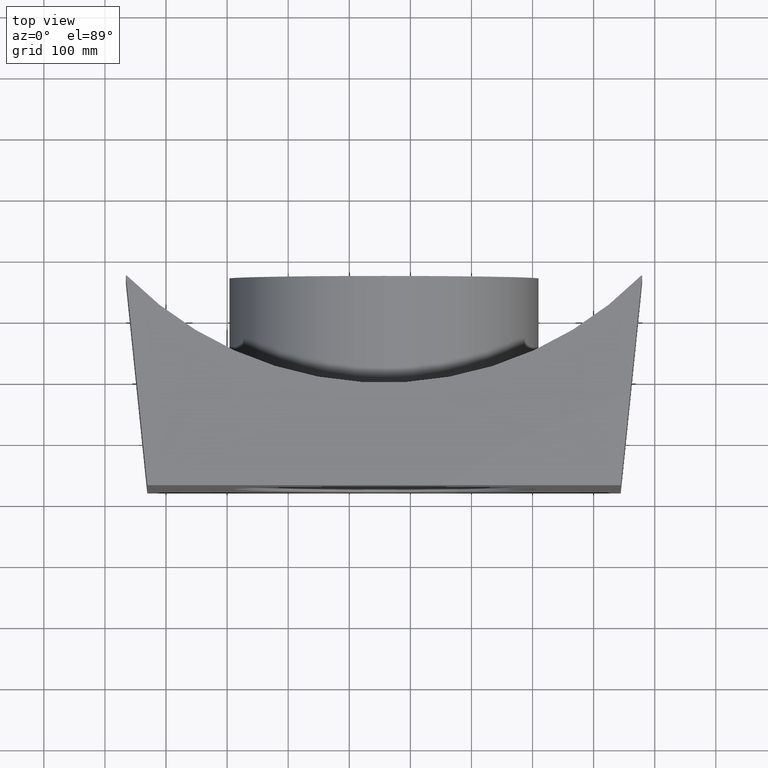
[diagram: clean part render]
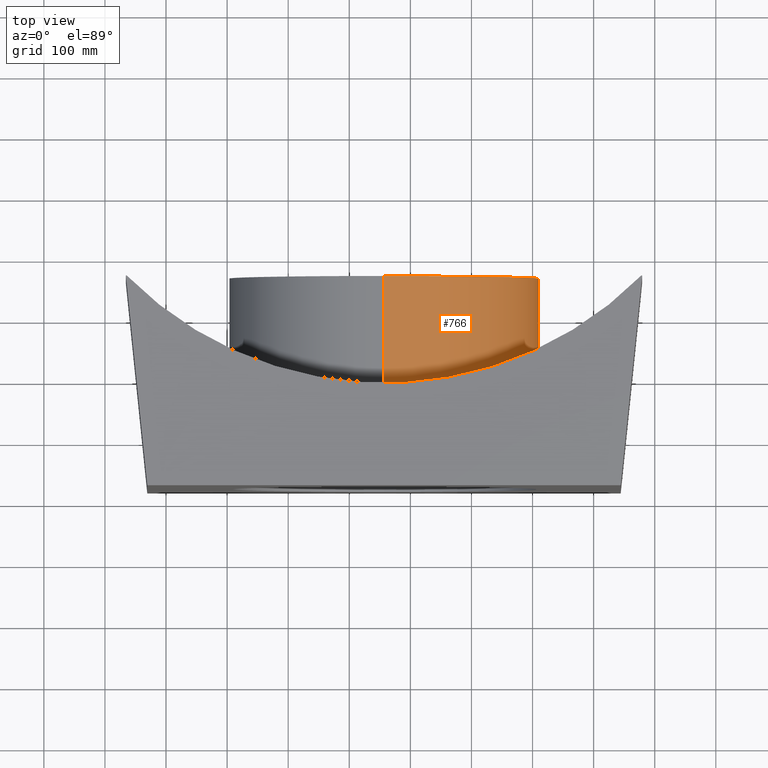
[diagram: same view with one face highlighted and labeled with its STEP entity id]
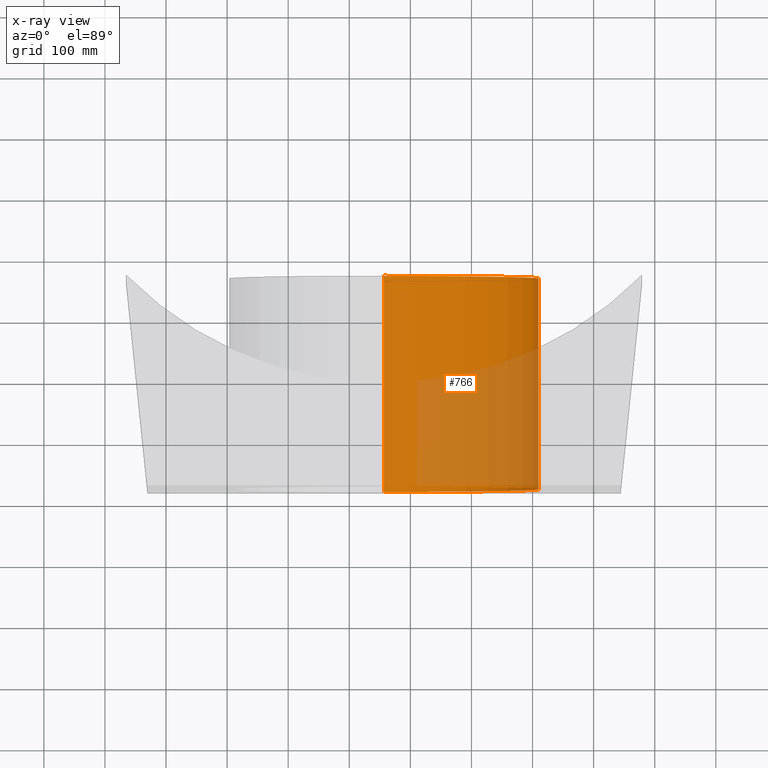
[diagram: x-ray of the same camera — body ghosted, the highlighted face saturated]
A machine part, top view. The second image highlights one B-rep face of the part: STEP entity #766.
The next image is the same camera in x-ray: the body ghosted, the highlighted face saturated — about 43% of this face is hidden behind the body in this view.
In plain terms, the highlighted cylindrical surface (partial cylindrical patch) has radius 254 mm, axis along (0, -1, -0).
Its self-contained STEP definition (entity closure, byte-faithful):
#2 = DIRECTION ( 'NONE',  ( 0.0000000000000000000, 1.000000000000000000, 1.224646799147353454E-16 ) ) ;
#17 = CARTESIAN_POINT ( 'NONE',  ( 0.0000000000000000000, -3.110602869834277181E-14, 253.9999999999999432 ) ) ;
#30 = FACE_OUTER_BOUND ( 'NONE', #253, .T. ) ;
#37 = DIRECTION ( 'NONE',  ( 0.0000000000000000000, -1.224646799147353454E-16, 1.000000000000000000 ) ) ;
#66 = VERTEX_POINT ( 'NONE', #871 ) ;
#73 = VERTEX_POINT ( 'NONE', #796 ) ;
#76 = AXIS2_PLACEMENT_3D ( 'NONE', #179, #104, #638 ) ;
#104 = DIRECTION ( 'NONE',  ( 0.0000000000000000000, 1.000000000000000000, 1.224646799147353454E-16 ) ) ;
#179 = CARTESIAN_POINT ( 'NONE',  ( 0.0000000000000000000, -344.9999999999999432, -4.163336342344337027E-14 ) ) ;
#181 = VERTEX_POINT ( 'NONE', #325 ) ;
#246 = CARTESIAN_POINT ( 'NONE',  ( 3.110602869834276550E-14, 5.886160431397169163E-14, -253.9999999999999432 ) ) ;
#251 = ORIENTED_EDGE ( 'NONE', *, *, #412, .F. ) ;
#253 = EDGE_LOOP ( 'NONE', ( #896, #434, #697, #251 ) ) ;
#290 = VECTOR ( 'NONE', #311, 1000.000000000000000 ) ;
#311 = DIRECTION ( 'NONE',  ( 0.0000000000000000000, 1.000000000000000000, 1.224646799147353454E-16 ) ) ;
#325 = CARTESIAN_POINT ( 'NONE',  ( 0.0000000000000000000, -345.0000000000000000, 253.9999999999998863 ) ) ;
#412 = EDGE_CURVE ( 'NONE', #181, #66, #775, .T. ) ;
#434 = ORIENTED_EDGE ( 'NONE', *, *, #521, .T. ) ;
#445 = AXIS2_PLACEMENT_3D ( 'NONE', #911, #2, #688 ) ;
#478 = CARTESIAN_POINT ( 'NONE',  ( 0.0000000000000000000, 0.0000000000000000000, 0.0000000000000000000 ) ) ;
#521 = EDGE_CURVE ( 'NONE', #73, #708, #940, .T. ) ;
#537 = DIRECTION ( 'NONE',  ( 0.0000000000000000000, 1.000000000000000000, 1.224646799147353454E-16 ) ) ;
#549 = VECTOR ( 'NONE', #537, 1000.000000000000000 ) ;
#638 = DIRECTION ( 'NONE',  ( 0.0000000000000000000, -2.185478394931411068E-16, 1.000000000000000000 ) ) ;
#688 = DIRECTION ( 'NONE',  ( 0.0000000000000000000, -1.224646799147353454E-16, 1.000000000000000000 ) ) ;
#697 = ORIENTED_EDGE ( 'NONE', *, *, #910, .F. ) ;
#708 = VERTEX_POINT ( 'NONE', #246 ) ;
#710 = CYLINDRICAL_SURFACE ( 'NONE', #905, 253.9999999999999432 ) ;
#734 = EDGE_CURVE ( 'NONE', #181, #73, #907, .T. ) ;
#766 = ADVANCED_FACE ( 'NONE', ( #30 ), #710, .T. ) ;
#775 = LINE ( 'NONE', #17, #549 ) ;
#780 = CARTESIAN_POINT ( 'NONE',  ( 3.110602869834276550E-14, 3.110602869834277181E-14, -253.9999999999999432 ) ) ;
#796 = CARTESIAN_POINT ( 'NONE',  ( 3.110602869834276550E-14, -344.9999999999998863, -254.0000000000000000 ) ) ;
#866 = DIRECTION ( 'NONE',  ( 0.0000000000000000000, 1.000000000000000000, 1.224646799147353454E-16 ) ) ;
#871 = CARTESIAN_POINT ( 'NONE',  ( 0.0000000000000000000, -3.350453082713856719E-15, 253.9999999999999432 ) ) ;
#890 = CIRCLE ( 'NONE', #445, 253.9999999999999432 ) ;
#896 = ORIENTED_EDGE ( 'NONE', *, *, #734, .T. ) ;
#905 = AXIS2_PLACEMENT_3D ( 'NONE', #478, #866, #37 ) ;
#907 = CIRCLE ( 'NONE', #76, 253.9999999999999432 ) ;
#910 = EDGE_CURVE ( 'NONE', #66, #708, #890, .T. ) ;
#911 = CARTESIAN_POINT ( 'NONE',  ( 0.0000000000000000000, 2.775557561562891351E-14, 0.0000000000000000000 ) ) ;
#940 = LINE ( 'NONE', #780, #290 ) ;